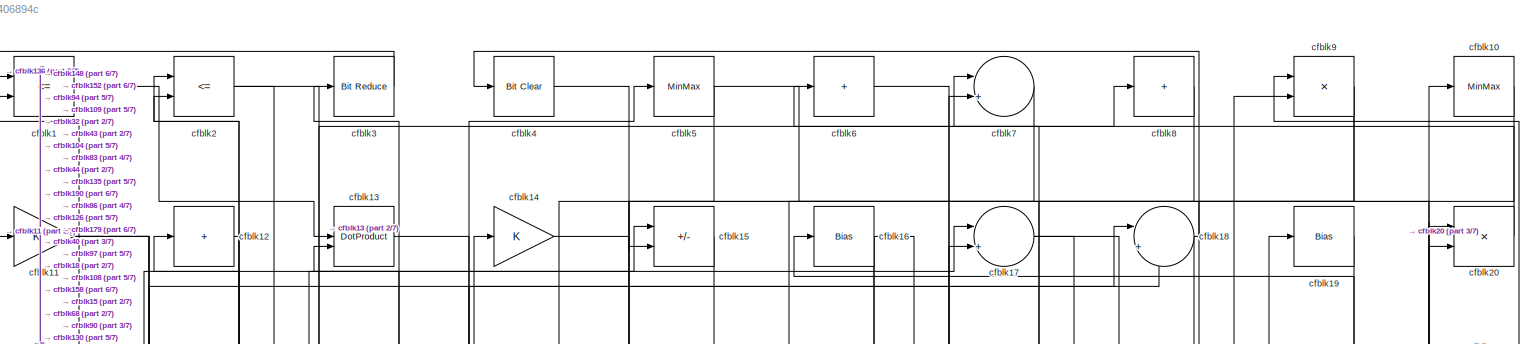
[diagram: root canvas - part 1/7, full width, top band]
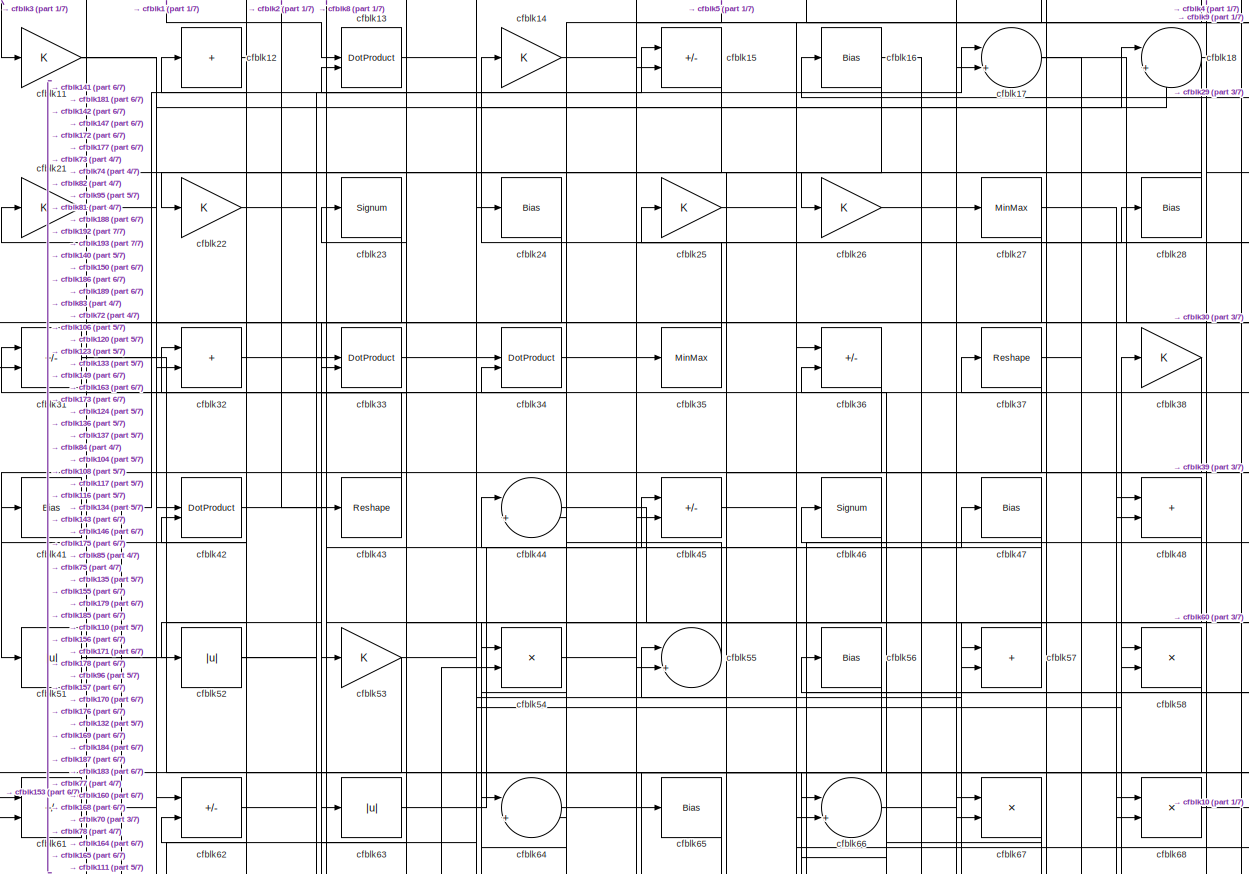
[diagram: root canvas - part 2/7, full width, top band]
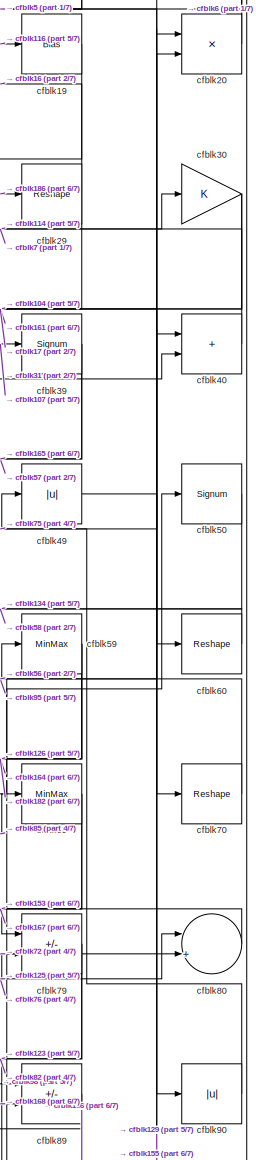
[diagram: root canvas - part 3/7, top right region]
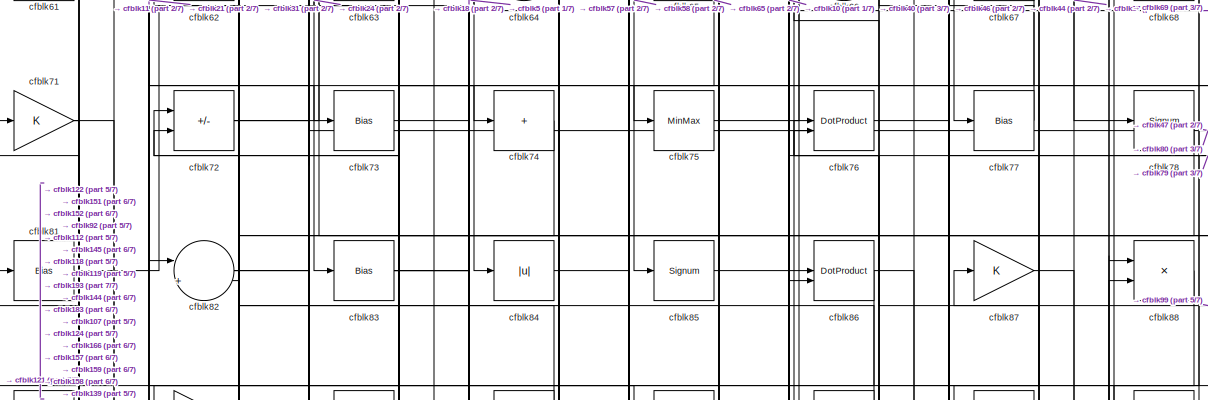
[diagram: root canvas - part 4/7, full width, middle band]
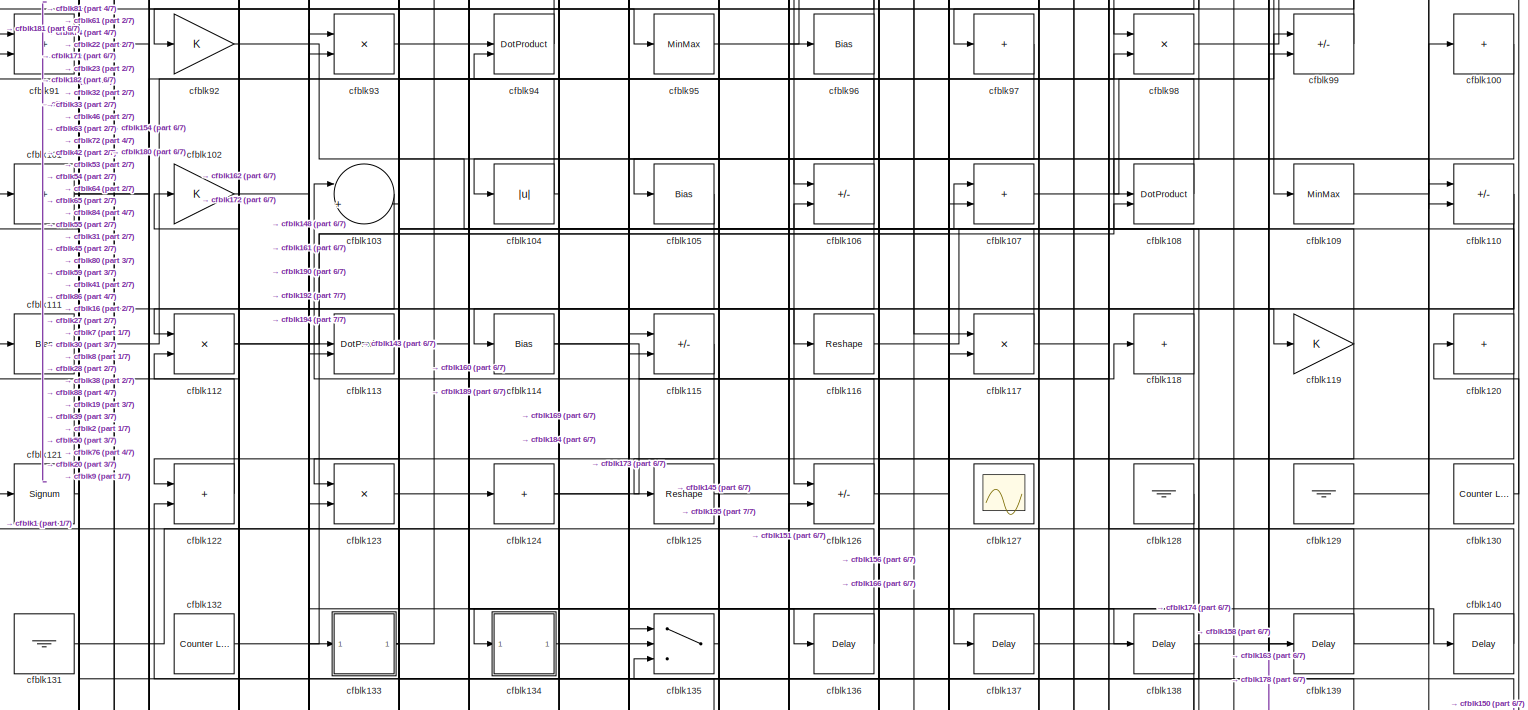
[diagram: root canvas - part 5/7, full width, middle band]
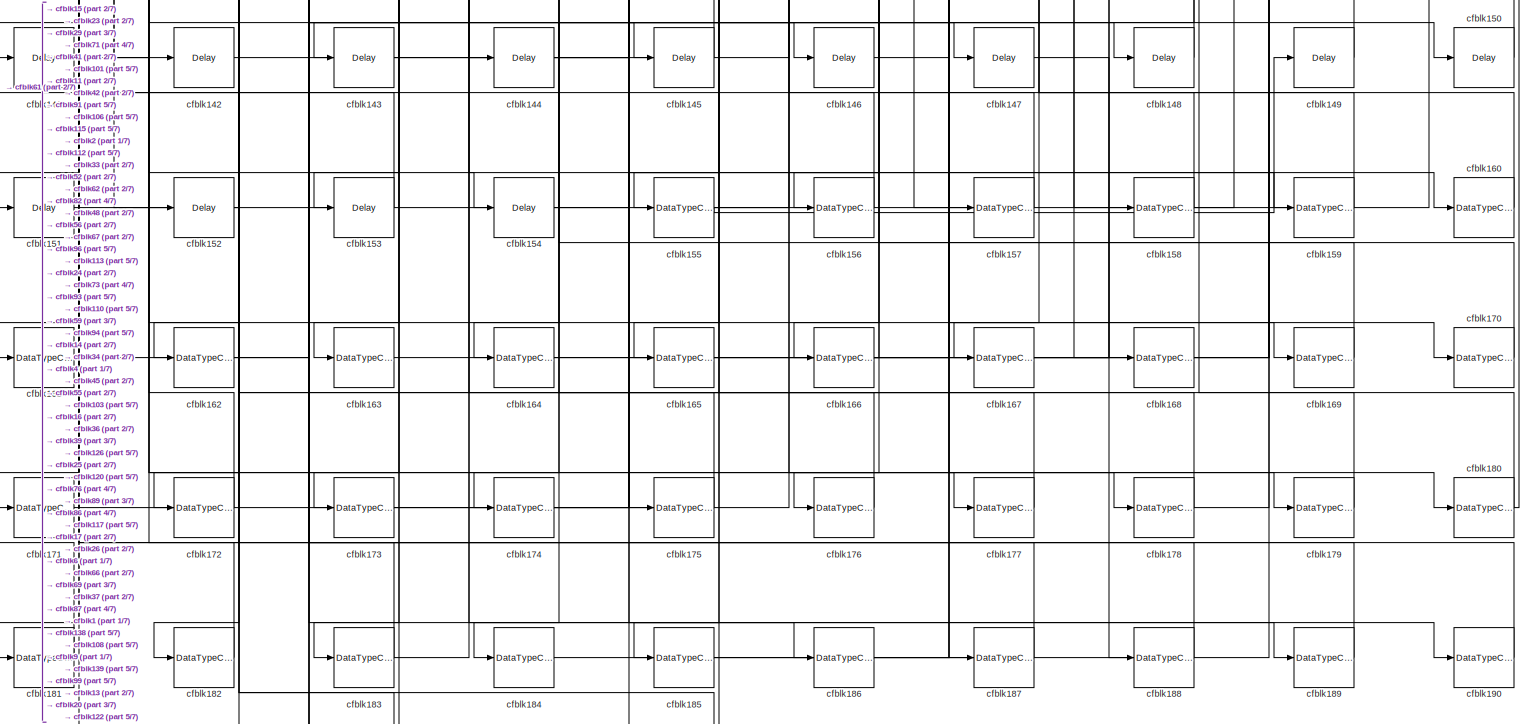
[diagram: root canvas - part 6/7, full width, bottom band]
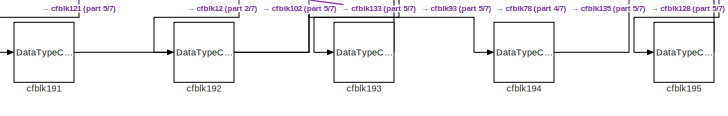
[diagram: root canvas - part 7/7, bottom left region]
MODEL slx_58f85406894c
KIND model
CONFIG AbsTol = auto
CONFIG EnableMultiTasking = off
CONFIG FixedStep = auto
CONFIG MaxStep = auto
CONFIG MinStep = auto
CONFIG RelTol = 1e-3
CONFIG SampleTimeConstraint = Unconstrained
CONFIG SolverName = VariableStepAuto
CONFIG StartTime = 0.0
CONFIG StopTime = 10.0
BLOCK [RelationalOperator] cfblk1
  InputSameDT = off
  Operator = <=
  OutDataTypeStr = boolean
BLOCK [MinMax] cfblk10
BLOCK [Sum] cfblk100
  IconShape = rectangular
  Inputs = +
BLOCK [Sum] cfblk101
  IconShape = rectangular
  Inputs = +
BLOCK [Gain] cfblk102
BLOCK [Sum] cfblk103
  Inputs = |++
BLOCK [Abs] cfblk104
  SaturateOnIntegerOverflow = off
BLOCK [Bias] cfblk105
  Bias = 0.0
  SaturateOnIntegerOverflow = off
BLOCK [Sum] cfblk106
  IconShape = rectangular
  Inputs = +-
BLOCK [Sum] cfblk107
  IconShape = rectangular
BLOCK [DotProduct] cfblk108
  OutDataTypeStr = Inherit: Inherit via internal rule
BLOCK [MinMax] cfblk109
BLOCK [Gain] cfblk11
BLOCK [Sum] cfblk110
  IconShape = rectangular
  Inputs = +-
BLOCK [Bias] cfblk111
  Bias = 0.0
  SaturateOnIntegerOverflow = off
BLOCK [Product] cfblk112
  Inputs = */
  RndMeth = Zero
  SaturateOnIntegerOverflow = on
BLOCK [DotProduct] cfblk113
  OutDataTypeStr = Inherit: Inherit via internal rule
BLOCK [Bias] cfblk114
  Bias = 0.0
  SaturateOnIntegerOverflow = off
BLOCK [Sum] cfblk115
  IconShape = rectangular
  Inputs = +-
BLOCK [Reshape] cfblk116
BLOCK [Product] cfblk117
  Inputs = */
  RndMeth = Zero
  SaturateOnIntegerOverflow = on
BLOCK [Sum] cfblk118
  IconShape = rectangular
  Inputs = +
BLOCK [Gain] cfblk119
BLOCK [Sum] cfblk12
  IconShape = rectangular
  Inputs = +
BLOCK [Sum] cfblk120
  IconShape = rectangular
  Inputs = +
BLOCK [Signum] cfblk121
BLOCK [Sum] cfblk122
  IconShape = rectangular
BLOCK [Product] cfblk123
  Inputs = */
  RndMeth = Zero
  SaturateOnIntegerOverflow = on
BLOCK [Sum] cfblk124
  IconShape = rectangular
  Inputs = +
BLOCK [Reshape] cfblk125
BLOCK [Sum] cfblk126
  IconShape = rectangular
  Inputs = +-
BLOCK [Scope] cfblk127
  Floating = on
  NumInputPorts = 1
  ScopeSpecificationString = Simulink.scopes.TimeScopeBlockCfg('CurrentConfiguration', extmgr.ConfigurationSet(extmgr.Configuration('Core','General UI',true,'FigureColor',[0.156862745098039 0.156862745098039 0.156862745098039]),extmgr.Configuration('Core','Source UI',true),extmgr.Configuration('Sources','WiredSimulink',true,'DataLoggingVariableName','ScopeData1','DataLoggingSaveFormat','StructureWithTime','DataLoggingLimitDat...<+2713ch>
BLOCK [Ground] cfblk128
BLOCK [Ground] cfblk129
BLOCK [DotProduct] cfblk13
  OutDataTypeStr = Inherit: Inherit via internal rule
BLOCK [Reference] cfblk130  REF=hdlsllib/Sources/Counter
Limited
  SourceBlock = hdlsllib/Sources/Counter\nLimited
  SourceType = Counter Limited
BLOCK [Ground] cfblk131
BLOCK [Reference] cfblk132  REF=hdlsllib/Sources/Counter
Limited
  SourceBlock = hdlsllib/Sources/Counter\nLimited
  SourceType = Counter Limited
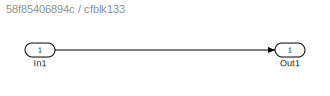
BLOCK [SubSystem] cfblk133
  LibrarySourceBlock = hdlsllib/Ports &\nSubsystems/Subsystem
BLOCK [Inport] cfblk133/In1
BLOCK [Outport] cfblk133/Out1
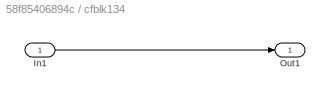
BLOCK [SubSystem] cfblk134
  LibrarySourceBlock = hdlsllib/Ports &\nSubsystems/Subsystem
BLOCK [Inport] cfblk134/In1
BLOCK [Outport] cfblk134/Out1
BLOCK [Switch] cfblk135
  InputSameDT = off
  SaturateOnIntegerOverflow = off
BLOCK [Delay] cfblk136
  InputPortMap = u0
  SampleTime = 1
BLOCK [Delay] cfblk137
  InputPortMap = u0
  SampleTime = 1
BLOCK [Delay] cfblk138
  InputPortMap = u0
  SampleTime = 1
BLOCK [Delay] cfblk139
  InputPortMap = u0
  SampleTime = 1
BLOCK [Gain] cfblk14
BLOCK [Delay] cfblk140
  InputPortMap = u0
  SampleTime = 1
BLOCK [Delay] cfblk141
  InputPortMap = u0
  SampleTime = 1
BLOCK [Delay] cfblk142
  InputPortMap = u0
  SampleTime = 1
BLOCK [Delay] cfblk143
  InputPortMap = u0
  SampleTime = 1
BLOCK [Delay] cfblk144
  InputPortMap = u0
  SampleTime = 1
BLOCK [Delay] cfblk145
  InputPortMap = u0
  SampleTime = 1
BLOCK [Delay] cfblk146
  InputPortMap = u0
  SampleTime = 1
BLOCK [Delay] cfblk147
  InputPortMap = u0
  SampleTime = 1
BLOCK [Delay] cfblk148
  InputPortMap = u0
  SampleTime = 1
BLOCK [Delay] cfblk149
  InputPortMap = u0
  SampleTime = 1
BLOCK [Sum] cfblk15
  IconShape = rectangular
  Inputs = +-
BLOCK [Delay] cfblk150
  InputPortMap = u0
  SampleTime = 1
BLOCK [Delay] cfblk151
  InputPortMap = u0
  SampleTime = 1
BLOCK [Delay] cfblk152
  InputPortMap = u0
  SampleTime = 1
BLOCK [Delay] cfblk153
  InputPortMap = u0
  SampleTime = 1
BLOCK [Delay] cfblk154
  InputPortMap = u0
  SampleTime = 1
BLOCK [DataTypeConversion] cfblk155
  RndMeth = Floor
  SaturateOnIntegerOverflow = off
BLOCK [DataTypeConversion] cfblk156
  OutDataTypeStr = uint8
  RndMeth = Floor
  SaturateOnIntegerOverflow = off
BLOCK [DataTypeConversion] cfblk157
  OutDataTypeStr = uint8
  RndMeth = Floor
  SaturateOnIntegerOverflow = off
BLOCK [DataTypeConversion] cfblk158
  RndMeth = Floor
  SaturateOnIntegerOverflow = off
BLOCK [DataTypeConversion] cfblk159
  OutDataTypeStr = uint8
  RndMeth = Floor
  SaturateOnIntegerOverflow = off
BLOCK [Bias] cfblk16
  Bias = 0.0
  SaturateOnIntegerOverflow = off
BLOCK [DataTypeConversion] cfblk160
  OutDataTypeStr = uint8
  RndMeth = Floor
  SaturateOnIntegerOverflow = off
BLOCK [DataTypeConversion] cfblk161
  OutDataTypeStr = uint8
  RndMeth = Floor
  SaturateOnIntegerOverflow = off
BLOCK [DataTypeConversion] cfblk162
  OutDataTypeStr = uint8
  RndMeth = Floor
  SaturateOnIntegerOverflow = off
BLOCK [DataTypeConversion] cfblk163
  OutDataTypeStr = uint8
  RndMeth = Floor
  SaturateOnIntegerOverflow = off
BLOCK [DataTypeConversion] cfblk164
  OutDataTypeStr = uint8
  RndMeth = Floor
  SaturateOnIntegerOverflow = off
BLOCK [DataTypeConversion] cfblk165
  OutDataTypeStr = uint8
  RndMeth = Floor
  SaturateOnIntegerOverflow = off
BLOCK [DataTypeConversion] cfblk166
  RndMeth = Floor
  SaturateOnIntegerOverflow = off
BLOCK [DataTypeConversion] cfblk167
  OutDataTypeStr = uint8
  RndMeth = Floor
  SaturateOnIntegerOverflow = off
BLOCK [DataTypeConversion] cfblk168
  OutDataTypeStr = uint8
  RndMeth = Floor
  SaturateOnIntegerOverflow = off
BLOCK [DataTypeConversion] cfblk169
  OutDataTypeStr = uint8
  RndMeth = Floor
  SaturateOnIntegerOverflow = off
BLOCK [Sum] cfblk17
  Inputs = |++
BLOCK [DataTypeConversion] cfblk170
  OutDataTypeStr = uint8
  RndMeth = Floor
  SaturateOnIntegerOverflow = off
BLOCK [DataTypeConversion] cfblk171
  OutDataTypeStr = uint8
  RndMeth = Floor
  SaturateOnIntegerOverflow = off
BLOCK [DataTypeConversion] cfblk172
  OutDataTypeStr = uint8
  RndMeth = Floor
  SaturateOnIntegerOverflow = off
BLOCK [DataTypeConversion] cfblk173
  OutDataTypeStr = uint8
  RndMeth = Floor
  SaturateOnIntegerOverflow = off
BLOCK [DataTypeConversion] cfblk174
  OutDataTypeStr = uint8
  RndMeth = Floor
  SaturateOnIntegerOverflow = off
BLOCK [DataTypeConversion] cfblk175
  OutDataTypeStr = uint8
  RndMeth = Floor
  SaturateOnIntegerOverflow = off
BLOCK [DataTypeConversion] cfblk176
  OutDataTypeStr = uint8
  RndMeth = Floor
  SaturateOnIntegerOverflow = off
BLOCK [DataTypeConversion] cfblk177
  OutDataTypeStr = uint8
  RndMeth = Floor
  SaturateOnIntegerOverflow = off
BLOCK [DataTypeConversion] cfblk178
  RndMeth = Floor
  SaturateOnIntegerOverflow = off
BLOCK [DataTypeConversion] cfblk179
  OutDataTypeStr = uint8
  RndMeth = Floor
  SaturateOnIntegerOverflow = off
BLOCK [Sum] cfblk18
  Inputs = |++
BLOCK [DataTypeConversion] cfblk180
  RndMeth = Floor
  SaturateOnIntegerOverflow = off
BLOCK [DataTypeConversion] cfblk181
  OutDataTypeStr = uint8
  RndMeth = Floor
  SaturateOnIntegerOverflow = off
BLOCK [DataTypeConversion] cfblk182
  OutDataTypeStr = uint8
  RndMeth = Floor
  SaturateOnIntegerOverflow = off
BLOCK [DataTypeConversion] cfblk183
  RndMeth = Floor
  SaturateOnIntegerOverflow = off
BLOCK [DataTypeConversion] cfblk184
  OutDataTypeStr = uint8
  RndMeth = Floor
  SaturateOnIntegerOverflow = off
BLOCK [DataTypeConversion] cfblk185
  OutDataTypeStr = uint8
  RndMeth = Floor
  SaturateOnIntegerOverflow = off
BLOCK [DataTypeConversion] cfblk186
  OutDataTypeStr = uint8
  RndMeth = Floor
  SaturateOnIntegerOverflow = off
BLOCK [DataTypeConversion] cfblk187
  OutDataTypeStr = uint8
  RndMeth = Floor
  SaturateOnIntegerOverflow = off
BLOCK [DataTypeConversion] cfblk188
  OutDataTypeStr = uint8
  RndMeth = Floor
  SaturateOnIntegerOverflow = off
BLOCK [DataTypeConversion] cfblk189
  OutDataTypeStr = uint8
  RndMeth = Floor
  SaturateOnIntegerOverflow = off
BLOCK [Bias] cfblk19
  Bias = 0.0
  SaturateOnIntegerOverflow = off
BLOCK [DataTypeConversion] cfblk190
  OutDataTypeStr = uint8
  RndMeth = Floor
  SaturateOnIntegerOverflow = off
BLOCK [DataTypeConversion] cfblk191
  OutDataTypeStr = uint8
  RndMeth = Floor
  SaturateOnIntegerOverflow = off
BLOCK [DataTypeConversion] cfblk192
  OutDataTypeStr = uint8
  RndMeth = Floor
  SaturateOnIntegerOverflow = off
BLOCK [DataTypeConversion] cfblk193
  OutDataTypeStr = uint8
  RndMeth = Floor
  SaturateOnIntegerOverflow = off
BLOCK [DataTypeConversion] cfblk194
  OutDataTypeStr = uint8
  RndMeth = Floor
  SaturateOnIntegerOverflow = off
BLOCK [DataTypeConversion] cfblk195
  OutDataTypeStr = uint8
  RndMeth = Floor
  SaturateOnIntegerOverflow = off
BLOCK [RelationalOperator] cfblk2
  InputSameDT = off
  Operator = <=
  OutDataTypeStr = boolean
BLOCK [Product] cfblk20
  Inputs = */
  RndMeth = Zero
  SaturateOnIntegerOverflow = on
BLOCK [Gain] cfblk21
BLOCK [Gain] cfblk22
BLOCK [Signum] cfblk23
BLOCK [Bias] cfblk24
  Bias = 0.0
  SaturateOnIntegerOverflow = off
BLOCK [Gain] cfblk25
BLOCK [Gain] cfblk26
BLOCK [MinMax] cfblk27
BLOCK [Bias] cfblk28
  Bias = 0.0
  SaturateOnIntegerOverflow = off
BLOCK [Reshape] cfblk29
BLOCK [Reference] cfblk3  REF=hdlsllib/Logic and Bit
Operations/Bit Reduce
  SourceBlock = hdlsllib/Logic and Bit\nOperations/Bit Reduce
  SourceType = Bit Reduce
BLOCK [Gain] cfblk30
BLOCK [Sum] cfblk31
  IconShape = rectangular
  Inputs = +-
BLOCK [Sum] cfblk32
  IconShape = rectangular
BLOCK [DotProduct] cfblk33
  OutDataTypeStr = Inherit: Inherit via internal rule
BLOCK [DotProduct] cfblk34
  OutDataTypeStr = Inherit: Inherit via internal rule
BLOCK [MinMax] cfblk35
BLOCK [Sum] cfblk36
  IconShape = rectangular
  Inputs = +-
BLOCK [Reshape] cfblk37
BLOCK [Gain] cfblk38
BLOCK [Signum] cfblk39
BLOCK [Reference] cfblk4  REF=simulink/Logic and Bit
Operations/Bit Clear
  LibrarySourceBlock = hdlsllib/Logic and Bit\nOperations/Bit Clear
  SourceBlock = simulink/Logic and Bit\nOperations/Bit Clear
  SourceType = Bit Clear
BLOCK [Sum] cfblk40
  IconShape = rectangular
BLOCK [Bias] cfblk41
  Bias = 0.0
  SaturateOnIntegerOverflow = off
BLOCK [DotProduct] cfblk42
  OutDataTypeStr = Inherit: Inherit via internal rule
BLOCK [Reshape] cfblk43
BLOCK [Sum] cfblk44
  Inputs = |++
BLOCK [Sum] cfblk45
  IconShape = rectangular
  Inputs = +-
BLOCK [Signum] cfblk46
BLOCK [Bias] cfblk47
  Bias = 0.0
  SaturateOnIntegerOverflow = off
BLOCK [Sum] cfblk48
  IconShape = rectangular
BLOCK [Abs] cfblk49
  SaturateOnIntegerOverflow = off
BLOCK [MinMax] cfblk5
BLOCK [Signum] cfblk50
BLOCK [Abs] cfblk51
  SaturateOnIntegerOverflow = off
BLOCK [Abs] cfblk52
  SaturateOnIntegerOverflow = off
BLOCK [Gain] cfblk53
BLOCK [Product] cfblk54
  Inputs = */
  RndMeth = Zero
  SaturateOnIntegerOverflow = on
BLOCK [Sum] cfblk55
  Inputs = |++
BLOCK [Bias] cfblk56
  Bias = 0.0
  SaturateOnIntegerOverflow = off
BLOCK [Sum] cfblk57
  IconShape = rectangular
BLOCK [Product] cfblk58
  Inputs = */
  RndMeth = Zero
  SaturateOnIntegerOverflow = on
BLOCK [MinMax] cfblk59
BLOCK [Sum] cfblk6
  IconShape = rectangular
  Inputs = +
BLOCK [Reshape] cfblk60
BLOCK [Sum] cfblk61
  IconShape = rectangular
  Inputs = +-
BLOCK [Sum] cfblk62
  IconShape = rectangular
  Inputs = +-
BLOCK [Abs] cfblk63
  SaturateOnIntegerOverflow = off
BLOCK [Sum] cfblk64
  Inputs = |++
BLOCK [Bias] cfblk65
  Bias = 0.0
  SaturateOnIntegerOverflow = off
BLOCK [Sum] cfblk66
  Inputs = |++
BLOCK [Product] cfblk67
  Inputs = */
  RndMeth = Zero
  SaturateOnIntegerOverflow = on
BLOCK [Product] cfblk68
  Inputs = */
  RndMeth = Zero
  SaturateOnIntegerOverflow = on
BLOCK [MinMax] cfblk69
BLOCK [Sum] cfblk7
  Inputs = |++
BLOCK [Reshape] cfblk70
BLOCK [Gain] cfblk71
BLOCK [Sum] cfblk72
  IconShape = rectangular
  Inputs = +-
BLOCK [Bias] cfblk73
  Bias = 0.0
  SaturateOnIntegerOverflow = off
BLOCK [Sum] cfblk74
  IconShape = rectangular
  Inputs = +
BLOCK [MinMax] cfblk75
BLOCK [DotProduct] cfblk76
  OutDataTypeStr = Inherit: Inherit via internal rule
BLOCK [Bias] cfblk77
  Bias = 0.0
  SaturateOnIntegerOverflow = off
BLOCK [Signum] cfblk78
BLOCK [Sum] cfblk79
  IconShape = rectangular
  Inputs = +-
BLOCK [Sum] cfblk8
  IconShape = rectangular
  Inputs = +
BLOCK [Sum] cfblk80
  Inputs = |++
BLOCK [Bias] cfblk81
  Bias = 0.0
  SaturateOnIntegerOverflow = off
BLOCK [Sum] cfblk82
  Inputs = |++
BLOCK [Bias] cfblk83
  Bias = 0.0
  SaturateOnIntegerOverflow = off
BLOCK [Abs] cfblk84
  SaturateOnIntegerOverflow = off
BLOCK [Signum] cfblk85
BLOCK [DotProduct] cfblk86
  OutDataTypeStr = Inherit: Inherit via internal rule
BLOCK [Gain] cfblk87
BLOCK [Product] cfblk88
  Inputs = */
  RndMeth = Zero
  SaturateOnIntegerOverflow = on
BLOCK [Sum] cfblk89
  IconShape = rectangular
  Inputs = +-
BLOCK [Product] cfblk9
  Inputs = */
  RndMeth = Zero
  SaturateOnIntegerOverflow = on
BLOCK [Abs] cfblk90
  SaturateOnIntegerOverflow = off
BLOCK [Sum] cfblk91
  IconShape = rectangular
BLOCK [Gain] cfblk92
BLOCK [Product] cfblk93
  Inputs = */
  RndMeth = Zero
  SaturateOnIntegerOverflow = on
BLOCK [DotProduct] cfblk94
  OutDataTypeStr = Inherit: Inherit via internal rule
BLOCK [MinMax] cfblk95
BLOCK [Bias] cfblk96
  Bias = 0.0
  SaturateOnIntegerOverflow = off
BLOCK [Sum] cfblk97
  IconShape = rectangular
  Inputs = +
BLOCK [Product] cfblk98
  Inputs = */
  RndMeth = Zero
  SaturateOnIntegerOverflow = on
BLOCK [Sum] cfblk99
  IconShape = rectangular
  Inputs = +-
LINE cfblk100:1 -> cfblk106:1
NET cfblk101:1 -> cfblk154:1, cfblk99:1
LINE cfblk102:1 -> cfblk194:1
LINE cfblk103:1 -> cfblk171:1
NET cfblk104:1 -> cfblk3:1, cfblk64:1
LINE cfblk105:1 -> cfblk114:1
NET cfblk106:1 -> cfblk162:1, cfblk63:1
LINE cfblk107:1 -> cfblk39:1
LINE cfblk108:1 -> cfblk54:1
LINE cfblk109:1 -> cfblk100:1
LINE cfblk10:1 -> cfblk86:2
NET cfblk110:1 -> cfblk122:1, cfblk184:1
LINE cfblk111:1 -> cfblk38:1
NET cfblk112:1 -> cfblk148:1, cfblk98:2
LINE cfblk113:1 -> cfblk160:1
NET cfblk114:1 -> cfblk118:1, cfblk30:1
LINE cfblk115:1 -> cfblk172:1
LINE cfblk116:1 -> cfblk19:1
NET cfblk117:1 -> cfblk119:1, cfblk64:2
NET cfblk118:1 -> cfblk125:1, cfblk72:2
NET cfblk119:1 -> cfblk135:3, cfblk72:1
NET cfblk11:1 -> cfblk147:1, cfblk177:1, cfblk74:1
NET cfblk120:1 -> cfblk156:1, cfblk32:1
NET cfblk121:1 -> cfblk111:1, cfblk191:1
LINE cfblk122:1 -> cfblk81:1
LINE cfblk123:1 -> cfblk138:1
NET cfblk124:1 -> cfblk28:1, cfblk88:2
LINE cfblk125:1 -> cfblk80:1
NET cfblk126:1 -> cfblk103:1, cfblk7:2
LINE cfblk128:1 -> cfblk195:1
LINE cfblk129:1 -> cfblk20:2
LINE cfblk12:1 -> cfblk192:1
LINE cfblk130:1 -> cfblk9:1
LINE cfblk131:1 -> cfblk94:1
LINE cfblk132:1 -> cfblk27:1
LINE cfblk133/In1:1 -> cfblk133/Out1:1
NET cfblk133:1 -> cfblk23:1, cfblk33:2, cfblk54:2
LINE cfblk134/In1:1 -> cfblk134/Out1:1
LINE cfblk134:1 -> cfblk65:1
LINE cfblk135:1 -> cfblk55:1
LINE cfblk136:1 -> cfblk1:1
LINE cfblk137:1 -> cfblk110:1
LINE cfblk138:1 -> cfblk174:1
LINE cfblk139:1 -> cfblk88:1
LINE cfblk13:1 -> cfblk68:2
LINE cfblk140:1 -> cfblk106:2
LINE cfblk141:1 -> cfblk170:1
LINE cfblk142:1 -> cfblk45:2
LINE cfblk143:1 -> cfblk55:2
LINE cfblk144:1 -> cfblk86:1
LINE cfblk145:1 -> cfblk103:2
LINE cfblk146:1 -> cfblk17:2
LINE cfblk147:1 -> cfblk188:1
LINE cfblk148:1 -> cfblk1:2
LINE cfblk149:1 -> cfblk13:2
LINE cfblk14:1 -> cfblk146:1
LINE cfblk150:1 -> cfblk122:2
LINE cfblk151:1 -> cfblk126:2
LINE cfblk152:1 -> cfblk2:2
LINE cfblk153:1 -> cfblk61:1
LINE cfblk154:1 -> cfblk159:1
NET cfblk155:1 -> cfblk149:1, cfblk20:1
LINE cfblk156:1 -> cfblk36:1
LINE cfblk157:1 -> cfblk36:2
NET cfblk158:1 -> cfblk101:1, cfblk9:2
LINE cfblk159:1 -> cfblk87:1
LINE cfblk15:1 -> cfblk141:1
LINE cfblk160:1 -> cfblk37:1
LINE cfblk161:1 -> cfblk113:1
LINE cfblk162:1 -> cfblk113:2
LINE cfblk163:1 -> cfblk139:1
LINE cfblk164:1 -> cfblk48:1
LINE cfblk165:1 -> cfblk48:2
NET cfblk166:1 -> cfblk117:2, cfblk76:2
LINE cfblk167:1 -> cfblk89:1
LINE cfblk168:1 -> cfblk89:2
LINE cfblk169:1 -> cfblk94:2
NET cfblk16:1 -> cfblk117:1, cfblk185:1, cfblk52:1
LINE cfblk170:1 -> cfblk66:1
LINE cfblk171:1 -> cfblk66:2
LINE cfblk172:1 -> cfblk42:1
LINE cfblk173:1 -> cfblk115:1
LINE cfblk174:1 -> cfblk115:2
LINE cfblk175:1 -> cfblk42:2
LINE cfblk176:1 -> cfblk34:1
LINE cfblk177:1 -> cfblk34:2
NET cfblk178:1 -> cfblk112:2, cfblk99:2
LINE cfblk179:1 -> cfblk25:1
NET cfblk17:1 -> cfblk70:1, cfblk78:1
NET cfblk180:1 -> cfblk108:2, cfblk120:1
LINE cfblk181:1 -> cfblk91:1
LINE cfblk182:1 -> cfblk91:2
NET cfblk183:1 -> cfblk24:1, cfblk71:1
LINE cfblk184:1 -> cfblk67:1
LINE cfblk185:1 -> cfblk67:2
LINE cfblk186:1 -> cfblk29:1
LINE cfblk187:1 -> cfblk62:1
LINE cfblk188:1 -> cfblk62:2
LINE cfblk189:1 -> cfblk33:1
NET cfblk18:1 -> cfblk26:1, cfblk4:1
LINE cfblk190:1 -> cfblk93:1
LINE cfblk191:1 -> cfblk93:2
LINE cfblk192:1 -> cfblk133:1
LINE cfblk193:1 -> cfblk12:1
LINE cfblk194:1 -> cfblk135:1
LINE cfblk195:1 -> cfblk102:1
LINE cfblk19:1 -> cfblk98:1
LINE cfblk1:1 -> cfblk13:1
LINE cfblk20:1 -> cfblk6:1
LINE cfblk21:1 -> cfblk82:1
LINE cfblk22:1 -> cfblk140:1
LINE cfblk23:1 -> cfblk181:1
LINE cfblk24:1 -> cfblk83:1
LINE cfblk25:1 -> cfblk178:1
LINE cfblk26:1 -> cfblk187:1
NET cfblk27:1 -> cfblk32:2, cfblk68:1
LINE cfblk28:1 -> cfblk22:1
NET cfblk29:1 -> cfblk161:1, cfblk16:1
NET cfblk2:1 -> cfblk109:1, cfblk43:1
NET cfblk30:1 -> cfblk104:1, cfblk31:2
NET cfblk31:1 -> cfblk73:1, cfblk96:1
LINE cfblk32:1 -> cfblk8:1
LINE cfblk33:1 -> cfblk137:1
LINE cfblk34:1 -> cfblk175:1
LINE cfblk35:1 -> cfblk14:1
LINE cfblk36:1 -> cfblk155:1
NET cfblk37:1 -> cfblk168:1, cfblk176:1
LINE cfblk38:1 -> cfblk51:1
NET cfblk39:1 -> cfblk165:1, cfblk57:1
LINE cfblk3:1 -> cfblk11:1
LINE cfblk40:1 -> cfblk7:1
NET cfblk41:1 -> cfblk142:1, cfblk15:1
LINE cfblk42:1 -> cfblk124:1
LINE cfblk43:1 -> cfblk21:1
LINE cfblk44:1 -> cfblk77:1
LINE cfblk45:1 -> cfblk110:2
LINE cfblk46:1 -> cfblk123:1
LINE cfblk47:1 -> cfblk84:1
LINE cfblk48:1 -> cfblk163:1
LINE cfblk49:1 -> cfblk60:1
LINE cfblk4:1 -> cfblk190:1
LINE cfblk50:1 -> cfblk134:1
NET cfblk51:1 -> cfblk18:2, cfblk53:1
NET cfblk52:1 -> cfblk150:1, cfblk17:1
NET cfblk53:1 -> cfblk136:1, cfblk61:2
LINE cfblk54:1 -> cfblk116:1
LINE cfblk55:1 -> cfblk31:1
LINE cfblk56:1 -> cfblk173:1
LINE cfblk57:1 -> cfblk44:1
LINE cfblk58:1 -> cfblk85:1
NET cfblk59:1 -> cfblk126:1, cfblk164:1, cfblk182:1
NET cfblk5:1 -> cfblk15:2, cfblk90:1
LINE cfblk60:1 -> cfblk58:1
LINE cfblk61:1 -> cfblk95:1
LINE cfblk62:1 -> cfblk186:1
LINE cfblk63:1 -> cfblk45:1
LINE cfblk64:1 -> cfblk35:1
LINE cfblk65:1 -> cfblk75:1
LINE cfblk66:1 -> cfblk169:1
LINE cfblk67:1 -> cfblk183:1
LINE cfblk68:1 -> cfblk10:1
NET cfblk69:1 -> cfblk153:1, cfblk167:1
LINE cfblk6:1 -> cfblk179:1
LINE cfblk70:1 -> cfblk56:1
NET cfblk71:1 -> cfblk151:1, cfblk152:1
NET cfblk72:1 -> cfblk47:1, cfblk80:2
LINE cfblk73:1 -> cfblk144:1
LINE cfblk74:1 -> cfblk112:1
LINE cfblk75:1 -> cfblk40:1
LINE cfblk76:1 -> cfblk79:2
LINE cfblk77:1 -> cfblk46:1
LINE cfblk78:1 -> cfblk193:1
NET cfblk79:1 -> cfblk123:2, cfblk82:2
LINE cfblk7:1 -> cfblk135:2
LINE cfblk80:1 -> cfblk79:1
LINE cfblk81:1 -> cfblk18:1
NET cfblk82:1 -> cfblk145:1, cfblk40:2
NET cfblk83:1 -> cfblk57:2, cfblk58:2, cfblk5:1
LINE cfblk84:1 -> cfblk107:2
LINE cfblk85:1 -> cfblk69:1
NET cfblk86:1 -> cfblk121:1, cfblk157:1
LINE cfblk87:1 -> cfblk158:1
LINE cfblk88:1 -> cfblk92:1
LINE cfblk89:1 -> cfblk166:1
LINE cfblk8:1 -> cfblk97:1
LINE cfblk90:1 -> cfblk49:1
LINE cfblk91:1 -> cfblk180:1
LINE cfblk92:1 -> cfblk107:1
LINE cfblk93:1 -> cfblk189:1
LINE cfblk94:1 -> cfblk2:1
LINE cfblk95:1 -> cfblk59:1
NET cfblk96:1 -> cfblk143:1, cfblk41:1
LINE cfblk97:1 -> cfblk105:1
LINE cfblk98:1 -> cfblk50:1
LINE cfblk99:1 -> cfblk76:1
NET cfblk9:1 -> cfblk108:1, cfblk44:2
note: NET lines group one-source signal fan-out (src -> all destinations, sorted); 1:1 wires keep LINE
